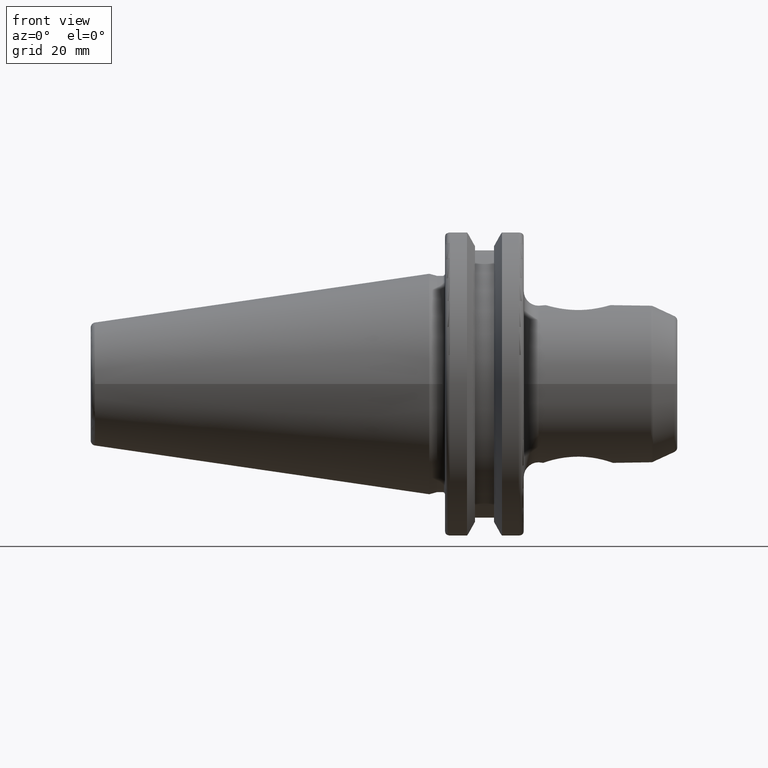
[diagram: clean part render]
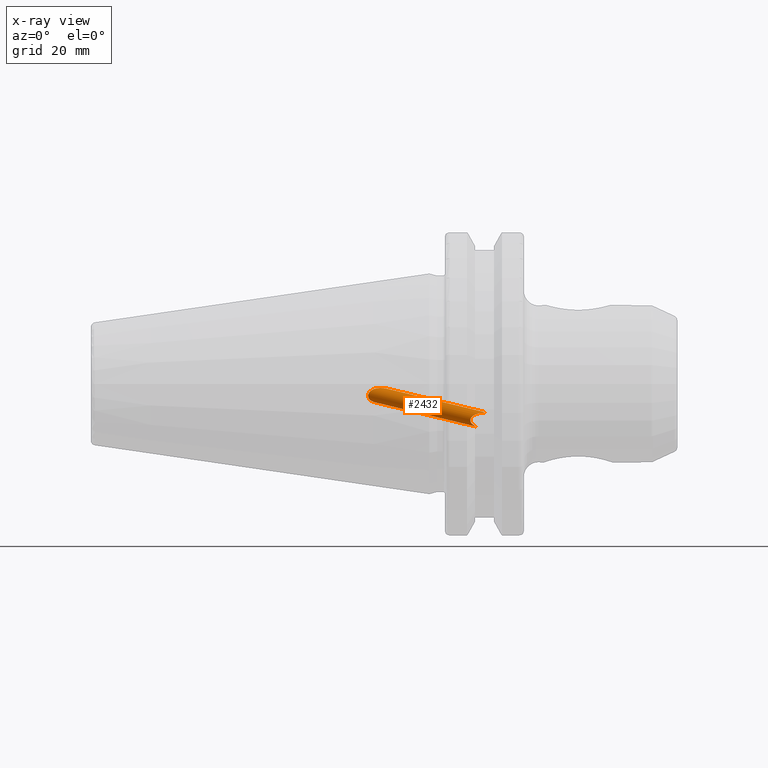
[diagram: x-ray — body ghosted, one internal face saturated and labeled with its STEP entity id]
A machine part, front view, then the same camera in x-ray: the body is ghosted and one INTERNAL B-rep face — a face not visible from any outside direction — is saturated and labeled: STEP entity #2432.
In plain terms, the highlighted cylindrical surface (edge-blend (fillet) strip) has radius 1.621 mm, axis along (0.8192, -0.539, -0.1962).
Its self-contained STEP definition (entity closure, byte-faithful):
#2=CARTESIAN_POINT('',(-8.591834360331E0,-6.935523420494E0,-9.479002499086E-1));
#25=CARTESIAN_POINT('',(-1.088691976929E1,-5.922217712251E0,-3.731934802311E0));
#73=CARTESIAN_POINT('',(-1.088691976929E1,-5.922217712251E0,-3.731934802311E0));
#74=CARTESIAN_POINT('',(-1.099661853193E1,-5.938772738534E0,-3.705663585082E0));
#75=CARTESIAN_POINT('',(-1.121206553190E1,-5.977395620058E0,-3.643668508776E0));
#76=CARTESIAN_POINT('',(-1.152319865983E1,-6.054611142330E0,-3.514413615950E0));
#77=CARTESIAN_POINT('',(-1.180113174415E1,-6.147623746352E0,-3.349867709955E0));
#78=CARTESIAN_POINT('',(-1.204736415209E1,-6.259429269555E0,-3.137431389082E0));
#79=CARTESIAN_POINT('',(-1.224187420426E1,-6.389025354927E0,-2.866519975646E0));
#80=CARTESIAN_POINT('',(-1.235209565521E1,-6.530031645767E0,-2.531769540886E0));
#81=CARTESIAN_POINT('',(-1.233455163513E1,-6.667631479001E0,-2.145082156593E0));
#82=CARTESIAN_POINT('',(-1.215936060963E1,-6.781707914723E0,-1.749412139362E0));
#83=CARTESIAN_POINT('',(-1.183010254234E1,-6.863108483005E0,-1.391113308514E0));
#84=CARTESIAN_POINT('',(-1.135674459162E1,-6.915007522405E0,-1.097288304612E0));
#85=CARTESIAN_POINT('',(-1.075701342230E1,-6.943344395362E0,
-8.928729340071E-1));
#86=CARTESIAN_POINT('',(-1.006709413608E1,-6.954679484181E0,
-7.952085864317E-1));
#87=CARTESIAN_POINT('',(-9.329520545465E0,-6.953145107757E0,
-8.090653190098E-1));
#88=CARTESIAN_POINT('',(-8.837129588991E0,-6.943552226460E0,
-8.891557018173E-1));
#89=CARTESIAN_POINT('',(-8.591834360331E0,-6.935523420494E0,
-9.479002499086E-1));
#91=DIRECTION('',(-8.191520442890E-1,5.389855446958E-1,1.961746949690E-1));
#92=VECTOR('',#91,2.545544164870E1);
#93=CARTESIAN_POINT('',(9.964957295521E0,-1.964233279475E1,-8.725648303046E0));
#94=LINE('',#93,#92);
#95=DIRECTION('',(8.191520442890E-1,-5.389855446958E-1,-1.961746949690E-1));
#96=VECTOR('',#95,2.405455067555E1);
#97=CARTESIAN_POINT('',(-8.591834360331E0,-6.935523420494E0,
-9.479002499086E-1));
#98=LINE('',#97,#96);
#99=CARTESIAN_POINT('',(9.964957295521E0,-2.065563850299E1,-5.941613750643E0));
#100=CARTESIAN_POINT('',(9.822595187948E0,-2.064322944701E1,-5.975707351731E0));
#101=CARTESIAN_POINT('',(9.557884788464E0,-2.061461243695E1,-6.054331940684E0));
#102=CARTESIAN_POINT('',(9.223964955797E0,-2.056402146550E1,-6.193329492376E0));
#103=CARTESIAN_POINT('',(8.947211964229E0,-2.050796597224E1,-6.347340694337E0));
#104=CARTESIAN_POINT('',(8.723826287145E0,-2.044818415884E1,-6.511589876769E0));
#105=CARTESIAN_POINT('',(8.552042447527E0,-2.038690519554E1,-6.679952444725E0));
#106=CARTESIAN_POINT('',(8.427147466785E0,-2.032569433429E1,-6.848127903832E0));
#107=CARTESIAN_POINT('',(8.343840460791E0,-2.026557062316E1,-7.013316442515E0));
#108=CARTESIAN_POINT('',(8.296617890104E0,-2.020703234003E1,-7.174149053597E0));
#109=CARTESIAN_POINT('',(8.281234337428E0,-2.014870768693E1,-7.334394720992E0));
#110=CARTESIAN_POINT('',(8.296682369350E0,-2.009082921843E1,-7.493414506279E0));
#111=CARTESIAN_POINT('',(8.344429339526E0,-2.003182220332E1,-7.655534947880E0));
#112=CARTESIAN_POINT('',(8.427790407394E0,-1.997191945046E1,-7.820116408708E0));
#113=CARTESIAN_POINT('',(8.553048106803E0,-1.991064991236E1,-7.988453081139E0));
#114=CARTESIAN_POINT('',(8.724681548243E0,-1.984953218746E1,-8.156372650238E0));
#115=CARTESIAN_POINT('',(8.948307799510E0,-1.978975037646E1,-8.320621826068E0));
#116=CARTESIAN_POINT('',(9.224941235538E0,-1.973378618315E1,-8.474382183461E0));
#117=CARTESIAN_POINT('',(9.558525158733E0,-1.968328378470E1,-8.613136382838E0));
#118=CARTESIAN_POINT('',(9.822836697968E0,-1.965472079939E1,-8.691612540005E0));
#119=CARTESIAN_POINT('',(9.964957295521E0,-1.964233279475E1,-8.725648303046E0));
#161=CARTESIAN_POINT('',(1.11125E1,-2.070340030120E1,-5.810389288551E0));
#162=CARTESIAN_POINT('',(1.097763274623E1,-2.070340030120E1,-5.810389288551E0));
#163=CARTESIAN_POINT('',(1.071194043673E1,-2.069963851116E1,-5.820703051408E0));
#164=CARTESIAN_POINT('',(1.032500316052E1,-2.068329278443E1,-5.865659345074E0));
#165=CARTESIAN_POINT('',(1.008248862519E1,-2.066588317324E1,-5.913466750452E0));
#166=CARTESIAN_POINT('',(9.964957295521E0,-2.065563850299E1,-5.941613750643E0));
#198=CARTESIAN_POINT('',(1.11125E1,-1.990057851877E1,-5.666794391302E0));
#208=CARTESIAN_POINT('',(1.11125E1,-1.990057851877E1,-5.666794391302E0));
#209=CARTESIAN_POINT('',(1.11125E1,-1.998913189693E1,-5.666794391302E0));
#210=CARTESIAN_POINT('',(1.11125E1,-2.016790845144E1,-5.677349517892E0));
#211=CARTESIAN_POINT('',(1.11125E1,-2.043843249279E1,-5.725376246031E0));
#212=CARTESIAN_POINT('',(1.11125E1,-2.061586917120E1,-5.778530562660E0));
#213=CARTESIAN_POINT('',(1.11125E1,-2.070340030120E1,-5.810389288551E0));
#2006=VERTEX_POINT('',#161);
#2007=VERTEX_POINT('',#166);
#2008=VERTEX_POINT('',#119);
#2165=VERTEX_POINT('',#198);
#2345=VERTEX_POINT('',#2);
#2346=VERTEX_POINT('',#25);
#2416=CARTESIAN_POINT('',(2.052595081003E0,-1.418775070878E1,
-5.163918949186E0));
#2417=DIRECTION('',(8.191520442890E-1,-5.389855446958E-1,-1.961746949690E-1));
#2418=DIRECTION('',(2.328994399200E-1,0.E0,9.725008230768E-1));
#2419=AXIS2_PLACEMENT_3D('',#2416,#2417,#2418);
#2420=CYLINDRICAL_SURFACE('',#2419,1.621E0);
#2421=ORIENTED_EDGE('',*,*,#2411,.F.);
#2422=ORIENTED_EDGE('',*,*,#2384,.F.);
#2424=ORIENTED_EDGE('',*,*,#2423,.F.);
#2426=ORIENTED_EDGE('',*,*,#2425,.F.);
#2428=ORIENTED_EDGE('',*,*,#2427,.F.);
#2429=ORIENTED_EDGE('',*,*,#2378,.F.);
#2430=EDGE_LOOP('',(#2421,#2422,#2424,#2426,#2428,#2429));
#2431=FACE_OUTER_BOUND('',#2430,.F.);
#2432=ADVANCED_FACE('',(#2431),#2420,.F.);
#90=B_SPLINE_CURVE_WITH_KNOTS('',3,(#73,#74,#75,#76,#77,#78,#79,#80,#81,#82,#83,
#84,#85,#86,#87,#88,#89),.UNSPECIFIED.,.F.,.F.,(4,1,1,1,1,1,1,1,1,1,1,1,1,1,4),(
0.E0,7.142857142857E-2,1.428571428571E-1,2.142857142857E-1,2.857142857143E-1,
3.571428571429E-1,4.285714285714E-1,5.E-1,5.714285714286E-1,6.428571428571E-1,
7.142857142857E-1,7.857142857143E-1,8.571428571429E-1,9.285714285714E-1,1.E0),
.UNSPECIFIED.);
#120=B_SPLINE_CURVE_WITH_KNOTS('',3,(#99,#100,#101,#102,#103,#104,#105,#106,
#107,#108,#109,#110,#111,#112,#113,#114,#115,#116,#117,#118,#119),.UNSPECIFIED.,
.F.,.F.,(4,1,1,1,1,1,1,1,1,1,1,1,1,1,1,1,1,1,4),(0.E0,5.555555555556E-2,
1.111111111111E-1,1.666666666667E-1,2.222222222222E-1,2.777777777778E-1,
3.333333333333E-1,3.888888888889E-1,4.444444444444E-1,5.E-1,5.555555555556E-1,
6.111111111111E-1,6.666666666667E-1,7.222222222222E-1,7.777777777778E-1,
8.333333333333E-1,8.888888888889E-1,9.444444444444E-1,1.E0),.UNSPECIFIED.);
#167=B_SPLINE_CURVE_WITH_KNOTS('',3,(#161,#162,#163,#164,#165,#166),
.UNSPECIFIED.,.F.,.F.,(4,1,1,4),(0.E0,3.333333333333E-1,6.666666666667E-1,1.E0),
.UNSPECIFIED.);
#214=B_SPLINE_CURVE_WITH_KNOTS('',3,(#208,#209,#210,#211,#212,#213),
.UNSPECIFIED.,.F.,.F.,(4,1,1,4),(0.E0,3.333333333333E-1,6.666666666667E-1,1.E0),
.UNSPECIFIED.);
#2378=EDGE_CURVE('',#2345,#2165,#98,.T.);
#2384=EDGE_CURVE('',#2008,#2346,#94,.T.);
#2411=EDGE_CURVE('',#2346,#2345,#90,.T.);
#2423=EDGE_CURVE('',#2007,#2008,#120,.T.);
#2425=EDGE_CURVE('',#2006,#2007,#167,.T.);
#2427=EDGE_CURVE('',#2165,#2006,#214,.T.);